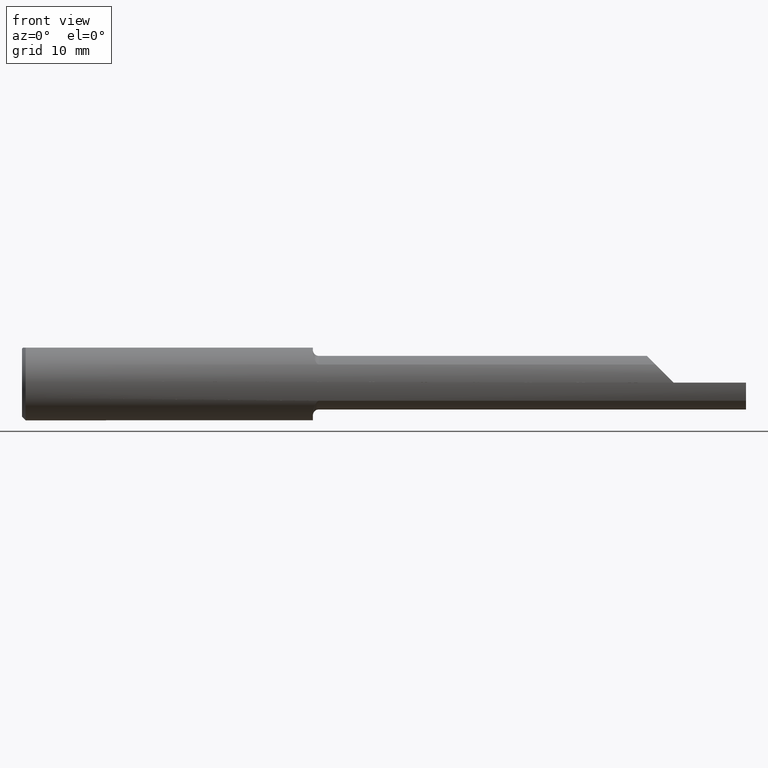
[diagram: clean part render]
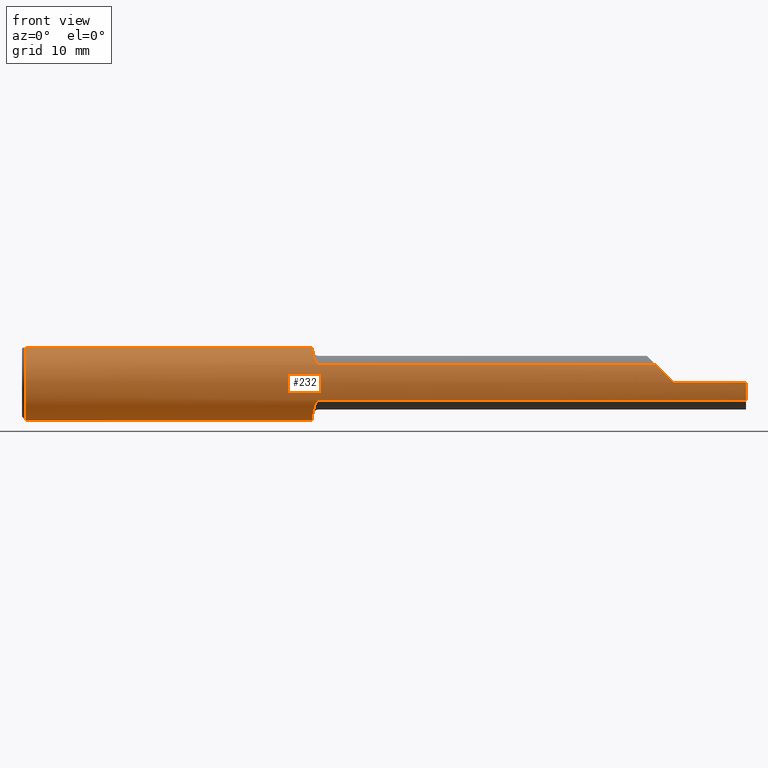
[diagram: same view with one face highlighted and labeled with its STEP entity id]
A machine part, front view. The second image highlights one B-rep face of the part: STEP entity #232.
In plain terms, the highlighted cylindrical surface (partial cylindrical patch) has radius 3.9649 mm, axis along (-1, -0, -0).
Its self-contained STEP definition (entity closure, byte-faithful):
#13 = VERTEX_POINT ( 'NONE', #409 ) ;
#17 = DIRECTION ( 'NONE',  ( 0.000000000000000000, 0.000000000000000000, 1.000000000000000000 ) ) ;
#19 = AXIS2_PLACEMENT_3D ( 'NONE', #233, #695, #447 ) ;
#21 = EDGE_CURVE ( 'NONE', #589, #288, #772, .T. ) ;
#22 = CIRCLE ( 'NONE', #506, 0.1560999999999999888 ) ;
#24 = CARTESIAN_POINT ( 'NONE',  ( 0.01500000000000298143, 0.000000000000000000, 0.000000000000000000 ) ) ;
#31 = ORIENTED_EDGE ( 'NONE', *, *, #842, .T. ) ;
#42 = CARTESIAN_POINT ( 'NONE',  ( 2.625027139386173491, -0.1368622504537206908, 0.07507286061382660580 ) ) ;
#44 = CARTESIAN_POINT ( 'NONE',  ( 1.205000000000000293, -0.08722028877555598747, 0.1296752301274216035 ) ) ;
#46 = CARTESIAN_POINT ( 'NONE',  ( 3.000000000000000444, -0.1560999999999999333, -3.979970649922725226E-17 ) ) ;
#47 = CARTESIAN_POINT ( 'NONE',  ( 1.217545102296320625, -0.1302115092214859715, 0.08616258549502014974 ) ) ;
#56 = CARTESIAN_POINT ( 'NONE',  ( 1.230000000000000426, -0.1368622504537204410, -0.07507286061382698050 ) ) ;
#73 = CARTESIAN_POINT ( 'NONE',  ( 3.000000000000000444, -0.1368622504537203854, -0.07507286061382703601 ) ) ;
#75 = VERTEX_POINT ( 'NONE', #777 ) ;
#99 = VERTEX_POINT ( 'NONE', #144 ) ;
#103 = CIRCLE ( 'NONE', #227, 0.1560999999999999888 ) ;
#120 = CARTESIAN_POINT ( 'NONE',  ( 2.700000000000000178, -0.1560999679692471886, 9.999999999974760253E-05 ) ) ;
#124 = CARTESIAN_POINT ( 'NONE',  ( 0.01500000000000247836, -0.05756040305626795861, 0.1450999999999999512 ) ) ;
#141 = ORIENTED_EDGE ( 'NONE', *, *, #636, .T. ) ;
#144 = CARTESIAN_POINT ( 'NONE',  ( 0.01500000000000298143, 0.05756040305626777126, 0.1451000000000000068 ) ) ;
#153 = DIRECTION ( 'NONE',  ( -1.000000000000000000, -0.000000000000000000, -0.000000000000000000 ) ) ;
#154 = EDGE_CURVE ( 'NONE', #296, #288, #837, .T. ) ;
#174 = CARTESIAN_POINT ( 'NONE',  ( 3.000000000000000444, 0.000000000000000000, 0.000000000000000000 ) ) ;
#186 = CARTESIAN_POINT ( 'NONE',  ( 1.219135453872436159, -0.1320388560634702668, 0.08332276230954650809 ) ) ;
#190 = LINE ( 'NONE', #496, #852 ) ;
#195 = CARTESIAN_POINT ( 'NONE',  ( 1.228086506300958725, -0.1368622504537204410, 0.07507286061382702214 ) ) ;
#204 = CARTESIAN_POINT ( 'NONE',  ( 1.222325674773646842, -0.1344725336059486298, -0.07928898134248273111 ) ) ;
#207 = DIRECTION ( 'NONE',  ( 1.000000000000000000, -0.000000000000000000, -0.000000000000000000 ) ) ;
#218 = VERTEX_POINT ( 'NONE', #793 ) ;
#223 = CARTESIAN_POINT ( 'NONE',  ( 1.205000000000000293, 0.000000000000000000, 0.000000000000000000 ) ) ;
#227 = AXIS2_PLACEMENT_3D ( 'NONE', #24, #698, #925 ) ;
#232 = ADVANCED_FACE ( 'NONE', ( #254 ), #237, .T. ) ;
#233 = CARTESIAN_POINT ( 'NONE',  ( 1.205000000000000293, 0.000000000000000000, 0.000000000000000000 ) ) ;
#237 = CYLINDRICAL_SURFACE ( 'NONE', #336, 0.1560999999999999888 ) ;
#248 = DIRECTION ( 'NONE',  ( -1.000000000000000000, -0.000000000000000000, -0.000000000000000000 ) ) ;
#251 = ORIENTED_EDGE ( 'NONE', *, *, #645, .T. ) ;
#254 = FACE_OUTER_BOUND ( 'NONE', #605, .T. ) ;
#256 = ORIENTED_EDGE ( 'NONE', *, *, #327, .F. ) ;
#262 = CIRCLE ( 'NONE', #916, 0.1560999999999999888 ) ;
#269 = CARTESIAN_POINT ( 'NONE',  ( 1.226348515781201298, -0.1364107636049786410, 0.07590013438261594692 ) ) ;
#271 = DIRECTION ( 'NONE',  ( -1.000000000000000000, -0.000000000000000000, -0.000000000000000000 ) ) ;
#272 = DIRECTION ( 'NONE',  ( 1.000000000000000000, 0.000000000000000000, 0.000000000000000000 ) ) ;
#285 = DIRECTION ( 'NONE',  ( 0.000000000000000000, 0.000000000000000000, -1.000000000000000000 ) ) ;
#288 = VERTEX_POINT ( 'NONE', #759 ) ;
#296 = VERTEX_POINT ( 'NONE', #604 ) ;
#298 = DIRECTION ( 'NONE',  ( 0.000000000000000000, 0.000000000000000000, -1.000000000000000000 ) ) ;
#301 = EDGE_CURVE ( 'NONE', #923, #825, #928, .T. ) ;
#327 = EDGE_CURVE ( 'NONE', #13, #665, #377, .T. ) ;
#336 = AXIS2_PLACEMENT_3D ( 'NONE', #174, #828, #17 ) ;
#345 = CARTESIAN_POINT ( 'NONE',  ( 1.211300778209996265, -0.1198130594394493653, 0.1003199648005457661 ) ) ;
#349 = CARTESIAN_POINT ( 'NONE',  ( 1.205000000000000293, -0.08082776769509972259, 0.1335443071397166837 ) ) ;
#375 = ORIENTED_EDGE ( 'NONE', *, *, #748, .F. ) ;
#377 = CIRCLE ( 'NONE', #19, 0.1560999999999999888 ) ;
#378 = EDGE_CURVE ( 'NONE', #99, #665, #390, .T. ) ;
#389 = LINE ( 'NONE', #889, #618 ) ;
#390 = LINE ( 'NONE', #648, #455 ) ;
#392 = ORIENTED_EDGE ( 'NONE', *, *, #690, .F. ) ;
#397 = VERTEX_POINT ( 'NONE', #46 ) ;
#402 = LINE ( 'NONE', #706, #780 ) ;
#405 = CARTESIAN_POINT ( 'NONE',  ( 1.230000000000000426, -0.1368622504537204410, 0.07507286061382698050 ) ) ;
#409 = CARTESIAN_POINT ( 'NONE',  ( 1.205000000000000293, -0.08082776769509972259, -0.1335443071397166837 ) ) ;
#415 = CARTESIAN_POINT ( 'NONE',  ( 2.700000000000000178, -0.1560999999999999888, -3.979970649922725226E-17 ) ) ;
#418 = CARTESIAN_POINT ( 'NONE',  ( 1.213324357153332533, -0.1243322553945040709, 0.09463600456597347221 ) ) ;
#426 = EDGE_CURVE ( 'NONE', #589, #843, #190, .T. ) ;
#427 = CARTESIAN_POINT ( 'NONE',  ( 0.01500000000000298143, 0.000000000000000000, 0.000000000000000000 ) ) ;
#430 = ORIENTED_EDGE ( 'NONE', *, *, #862, .T. ) ;
#444 = DIRECTION ( 'NONE',  ( 0.000000000000000000, 0.000000000000000000, -1.000000000000000000 ) ) ;
#447 = DIRECTION ( 'NONE',  ( 0.000000000000000000, 0.000000000000000000, -1.000000000000000000 ) ) ;
#453 = VERTEX_POINT ( 'NONE', #124 ) ;
#455 = VECTOR ( 'NONE', #932, 39.37007874015748143 ) ;
#457 = DIRECTION ( 'NONE',  ( 1.000000000000000000, 0.000000000000000000, 0.000000000000000000 ) ) ;
#471 = CARTESIAN_POINT ( 'NONE',  ( 2.648128869355540260, -0.1495342103855427096, 0.05197113064445962188 ) ) ;
#484 = CARTESIAN_POINT ( 'NONE',  ( 2.673651030168674669, -0.1560830884207283498, 0.02644896983132491095 ) ) ;
#493 = CARTESIAN_POINT ( 'NONE',  ( 1.223464868753674439, -0.1351961852369925332, 0.07804305429669783356 ) ) ;
#496 = CARTESIAN_POINT ( 'NONE',  ( 2.055500000000000327, -0.1368622504537204410, 0.07507286061382698050 ) ) ;
#503 = CARTESIAN_POINT ( 'NONE',  ( 1.217567871908215915, -0.1302407872897888841, -0.08611932130684253617 ) ) ;
#506 = AXIS2_PLACEMENT_3D ( 'NONE', #679, #457, #298 ) ;
#513 = CARTESIAN_POINT ( 'NONE',  ( 1.205000000000000071, -0.09362651965208497462, -0.1257978552532720007 ) ) ;
#530 = ORIENTED_EDGE ( 'NONE', *, *, #154, .F. ) ;
#547 = ORIENTED_EDGE ( 'NONE', *, *, #21, .T. ) ;
#556 = CARTESIAN_POINT ( 'NONE',  ( 2.700000000000000178, -0.1560999679692471886, 9.999999999974760253E-05 ) ) ;
#577 = CARTESIAN_POINT ( 'NONE',  ( 1.211298582722805772, -0.1198197303235669225, -0.1003181488768664781 ) ) ;
#580 = CARTESIAN_POINT ( 'NONE',  ( 1.219174461442129376, -0.1320749731185601183, -0.08326458372355881321 ) ) ;
#584 = CARTESIAN_POINT ( 'NONE',  ( 1.228106053287835175, -0.1368622504537226892, -0.07507286061382438536 ) ) ;
#589 = VERTEX_POINT ( 'NONE', #792 ) ;
#594 =( BOUNDED_CURVE ( )  B_SPLINE_CURVE ( 3, ( #556, #484, #471, #710 ),
 .UNSPECIFIED., .F., .F. ) 
 B_SPLINE_CURVE_WITH_KNOTS ( ( 4, 4 ),
 ( 4.713029595418895212, 5.214101826882459711 ),
 .UNSPECIFIED. ) 
 CURVE ( )  GEOMETRIC_REPRESENTATION_ITEM ( )  RATIONAL_B_SPLINE_CURVE ( ( 1.000000000000000000, 0.9791864302132655684, 0.9791864302132655684, 1.000000000000000000 ) ) 
 REPRESENTATION_ITEM ( '' )  );
#604 = CARTESIAN_POINT ( 'NONE',  ( 1.205000000000000293, -0.05756040305626796555, 0.1450999999999999512 ) ) ;
#605 = EDGE_LOOP ( 'NONE', ( #392, #375, #868, #948, #31, #782, #547, #530, #430, #817, #141, #622, #256, #251 ) ) ;
#618 = VECTOR ( 'NONE', #248, 39.37007874015748143 ) ;
#622 = ORIENTED_EDGE ( 'NONE', *, *, #378, .T. ) ;
#636 = EDGE_CURVE ( 'NONE', #75, #99, #262, .T. ) ;
#639 = DIRECTION ( 'NONE',  ( -1.000000000000000000, -0.000000000000000000, -0.000000000000000000 ) ) ;
#645 = EDGE_CURVE ( 'NONE', #13, #218, #646, .T. ) ;
#646 = B_SPLINE_CURVE_WITH_KNOTS ( 'NONE', 3,
 ( #936, #513, #795, #577, #858, #503, #580, #204, #787, #723, #584, #56 ),
 .UNSPECIFIED., .F., .F.,
 ( 4, 2, 2, 2, 2, 4 ),
 ( 0.000000000000000000, 0.001123756246128506091, 0.001685634369192760005, 0.001966573430724889888, 0.002107042961490954072, 0.002247512492257018688 ),
 .UNSPECIFIED. ) ;
#648 = CARTESIAN_POINT ( 'NONE',  ( 3.000000000000000444, 0.05756040305626789616, 0.1450999999999999235 ) ) ;
#654 = CARTESIAN_POINT ( 'NONE',  ( 1.205000000000000293, 0.05756040305626788228, 0.1450999999999999512 ) ) ;
#665 = VERTEX_POINT ( 'NONE', #654 ) ;
#679 = CARTESIAN_POINT ( 'NONE',  ( 3.000000000000000444, 0.000000000000000000, 0.000000000000000000 ) ) ;
#690 = EDGE_CURVE ( 'NONE', #733, #218, #389, .T. ) ;
#695 = DIRECTION ( 'NONE',  ( 1.000000000000000000, 0.000000000000000000, 0.000000000000000000 ) ) ;
#698 = DIRECTION ( 'NONE',  ( 1.000000000000000000, -0.000000000000000000, -0.000000000000000000 ) ) ;
#703 = CARTESIAN_POINT ( 'NONE',  ( 1.222300575926265509, -0.1344565892346399893, 0.07931625727899709044 ) ) ;
#704 = AXIS2_PLACEMENT_3D ( 'NONE', #223, #735, #444 ) ;
#706 = CARTESIAN_POINT ( 'NONE',  ( 3.000000000000000444, -0.1560999999999999333, -3.979970649922723994E-17 ) ) ;
#710 = CARTESIAN_POINT ( 'NONE',  ( 2.625027139386173491, -0.1368622504537206908, 0.07507286061382660580 ) ) ;
#712 = CARTESIAN_POINT ( 'NONE',  ( 1.208112206751180029, -0.1100485138537332930, 0.1109440811778998892 ) ) ;
#723 = CARTESIAN_POINT ( 'NONE',  ( 1.226349781358732738, -0.1364086230541974865, -0.07590362166592534710 ) ) ;
#733 = VERTEX_POINT ( 'NONE', #73 ) ;
#735 = DIRECTION ( 'NONE',  ( 1.000000000000000000, 0.000000000000000000, 0.000000000000000000 ) ) ;
#748 = EDGE_CURVE ( 'NONE', #397, #733, #22, .T. ) ;
#759 = CARTESIAN_POINT ( 'NONE',  ( 1.205000000000000293, -0.08082776769509972259, 0.1335443071397166837 ) ) ;
#763 = VECTOR ( 'NONE', #271, 39.37007874015748143 ) ;
#772 = B_SPLINE_CURVE_WITH_KNOTS ( 'NONE', 3,
 ( #405, #195, #269, #493, #703, #186, #47, #418, #345, #712, #859, #920, #44, #349 ),
 .UNSPECIFIED., .F., .F.,
 ( 4, 2, 2, 2, 2, 2, 4 ),
 ( 0.000000000000000000, 0.0001427501031775190734, 0.0002855002063550378215, 0.0005710004127100758598, 0.001142000825420152804, 0.001713001238130229965, 0.002284001650840307342 ),
 .UNSPECIFIED. ) ;
#777 = CARTESIAN_POINT ( 'NONE',  ( 0.01500000000000298143, 0.000000000000000000, -0.1561000000000005161 ) ) ;
#778 = CARTESIAN_POINT ( 'NONE',  ( 3.000000000000000444, -0.05756040305626789616, 0.1450999999999999235 ) ) ;
#780 = VECTOR ( 'NONE', #639, 39.37007874015748143 ) ;
#782 = ORIENTED_EDGE ( 'NONE', *, *, #426, .F. ) ;
#787 = CARTESIAN_POINT ( 'NONE',  ( 1.223506495904680635, -0.1352163519649314249, -0.07800775850415042623 ) ) ;
#792 = CARTESIAN_POINT ( 'NONE',  ( 1.230000000000000426, -0.1368622504537204410, 0.07507286061382698050 ) ) ;
#793 = CARTESIAN_POINT ( 'NONE',  ( 1.230000000000000426, -0.1368622504537204410, -0.07507286061382698050 ) ) ;
#795 = CARTESIAN_POINT ( 'NONE',  ( 1.206469879655010402, -0.1049921135599800742, -0.1164346218518445136 ) ) ;
#816 = DIRECTION ( 'NONE',  ( 0.000000000000000000, 0.000000000000000000, 1.000000000000000000 ) ) ;
#817 = ORIENTED_EDGE ( 'NONE', *, *, #906, .T. ) ;
#825 = VERTEX_POINT ( 'NONE', #120 ) ;
#828 = DIRECTION ( 'NONE',  ( -1.000000000000000000, -0.000000000000000000, -0.000000000000000000 ) ) ;
#837 = CIRCLE ( 'NONE', #704, 0.1560999999999999888 ) ;
#842 = EDGE_CURVE ( 'NONE', #825, #843, #594, .T. ) ;
#843 = VERTEX_POINT ( 'NONE', #42 ) ;
#846 = EDGE_CURVE ( 'NONE', #397, #923, #402, .T. ) ;
#852 = VECTOR ( 'NONE', #272, 39.37007874015748143 ) ;
#858 = CARTESIAN_POINT ( 'NONE',  ( 1.213312382054487104, -0.1243204233981918122, -0.09465517963088564135 ) ) ;
#859 = CARTESIAN_POINT ( 'NONE',  ( 1.206962149267435835, -0.1047579505689460316, 0.1159640188207535921 ) ) ;
#862 = EDGE_CURVE ( 'NONE', #296, #453, #911, .T. ) ;
#868 = ORIENTED_EDGE ( 'NONE', *, *, #846, .T. ) ;
#889 = CARTESIAN_POINT ( 'NONE',  ( 2.055500000000000327, -0.1368622504537204410, -0.07507286061382698050 ) ) ;
#906 = EDGE_CURVE ( 'NONE', #453, #75, #103, .T. ) ;
#908 = CARTESIAN_POINT ( 'NONE',  ( 2.700000000000000178, 0.000000000000000000, 0.000000000000000000 ) ) ;
#911 = LINE ( 'NONE', #778, #763 ) ;
#916 = AXIS2_PLACEMENT_3D ( 'NONE', #427, #207, #285 ) ;
#920 = CARTESIAN_POINT ( 'NONE',  ( 1.205398932116762412, -0.09332769694267495364, 0.1253468102978374243 ) ) ;
#923 = VERTEX_POINT ( 'NONE', #415 ) ;
#925 = DIRECTION ( 'NONE',  ( 0.000000000000000000, 0.000000000000000000, -1.000000000000000000 ) ) ;
#928 = CIRCLE ( 'NONE', #958, 0.1560999999999999888 ) ;
#932 = DIRECTION ( 'NONE',  ( 1.000000000000000000, 0.000000000000000000, 0.000000000000000000 ) ) ;
#936 = CARTESIAN_POINT ( 'NONE',  ( 1.205000000000000293, -0.08082776769509972259, -0.1335443071397166837 ) ) ;
#948 = ORIENTED_EDGE ( 'NONE', *, *, #301, .T. ) ;
#958 = AXIS2_PLACEMENT_3D ( 'NONE', #908, #153, #816 ) ;